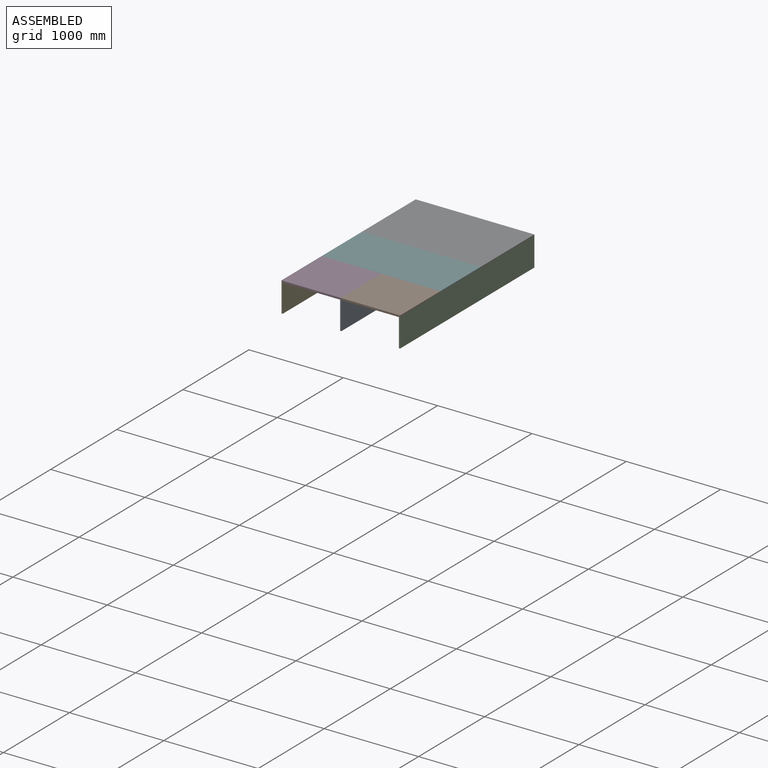
[diagram: assembled view]
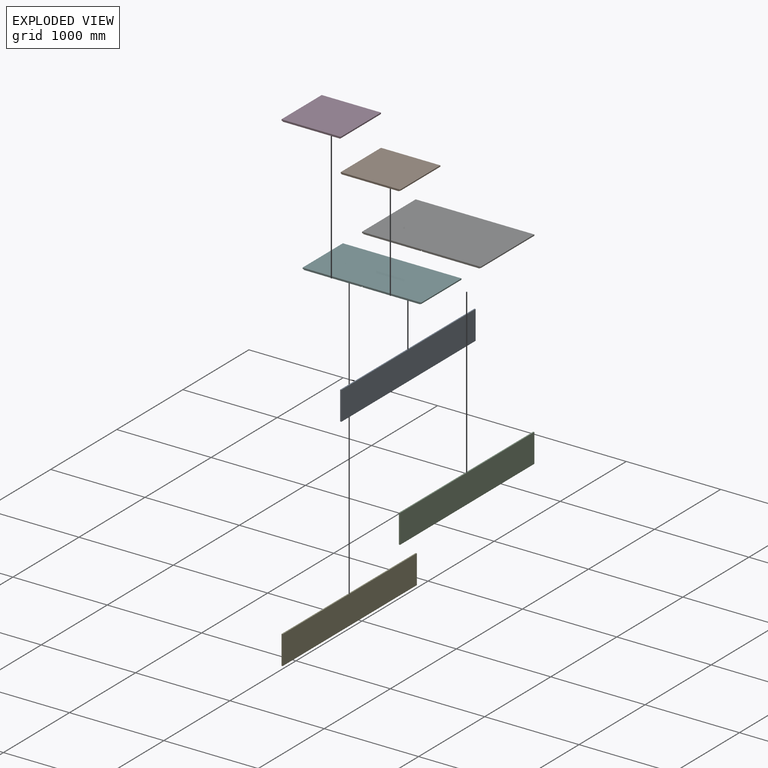
[diagram: exploded view]
GUIDED TOUR — MATED ASSEMBLY (Onshape document 25222a847f9256c59a29264d, AutoMate assembly 25222a847f9256c59a29264d_818da6c3a20291dfd6bd73ee_654201177585050ae4c5c209_default)

This assembly has 7 components, labeled P0..P6 below (a component is one placed occurrence of a part; the same part can appear more than once), held together by 6 mates. A mate is a constraint between two components; its type names the relative motion it leaves free:
  FASTENED — locks the two components together rigidly (no relative motion).
Axis/direction vectors are unit vectors and 'through' points are millimeter coordinates, both in the assembly's world frame.

MATES
  1. FASTENED "Fastened 3": P3 <-> P5, direction (0.000, 1.000, 0.000) through (0.00, -609.60, 19.05) mm
  2. FASTENED "Fastened 1": P6 <-> P5, direction (0.000, -1.000, 0.000) through (0.00, 0.00, 19.05) mm
  3. FASTENED "Fastened 5": P2 <-> P1, direction (0.000, 0.000, 1.000) through (1244.60, -1219.20, 6.35) mm
  4. FASTENED "Fastened 4": P4 <-> P3, direction (0.000, 0.000, 1.000) through (12.70, -1219.20, 6.35) mm
  5. FASTENED "Fastened 2": P1 <-> P5, direction (0.000, 1.000, 0.000) through (1257.30, -609.60, 19.05) mm
  6. FASTENED "Fastened 6": P0 <-> P6, direction (0.000, 0.000, 1.000) through (622.30, 812.80, 6.35) mm

ASSEMBLY ORDER
  1. P6 — the base component [order verified]
  2. P5 [order verified]
  3. P1 [order verified]
  4. P3 [order verified]
  5. P0 [order verified]
  6. P2 [order verified]
  7. P4 [order verified]
Order-tag legend:
  [order verified] — this step's position reverses a verified removal order: the component was checked to insert without passing through the ones already placed.

Of the 7 components, 7 carry the full construction recipe — the FeatureScript program that regenerates the part's solid from scratch; the rest are supplied as boundary geometry only.
Each toured component is shown spotlighted twice — in the assembled view, then in the exploded view, where a leader line traces a displaced component back to its assembled socket (saturated green if recipe-attached, orange if geometry-only; every other component desaturated gray) — followed by its recipe or geometry summary and the mates that hold it.
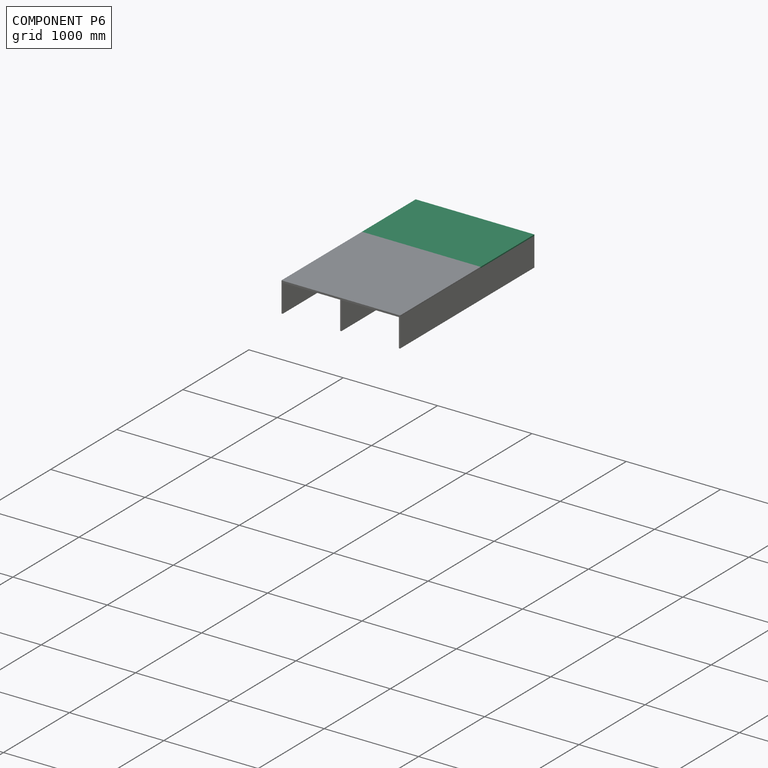
[diagram: component P6 — assembled]
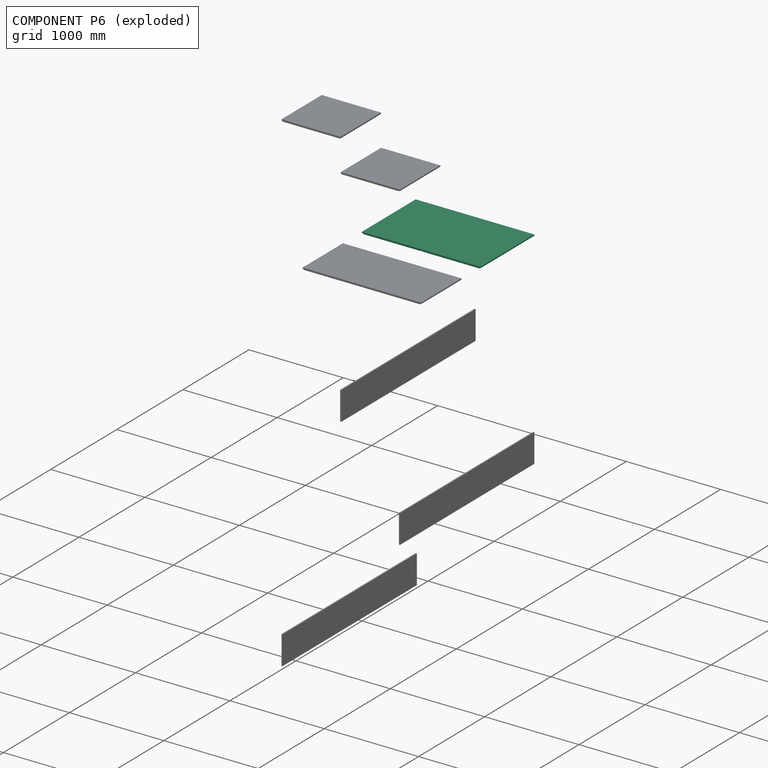
[diagram: component P6 — exploded]
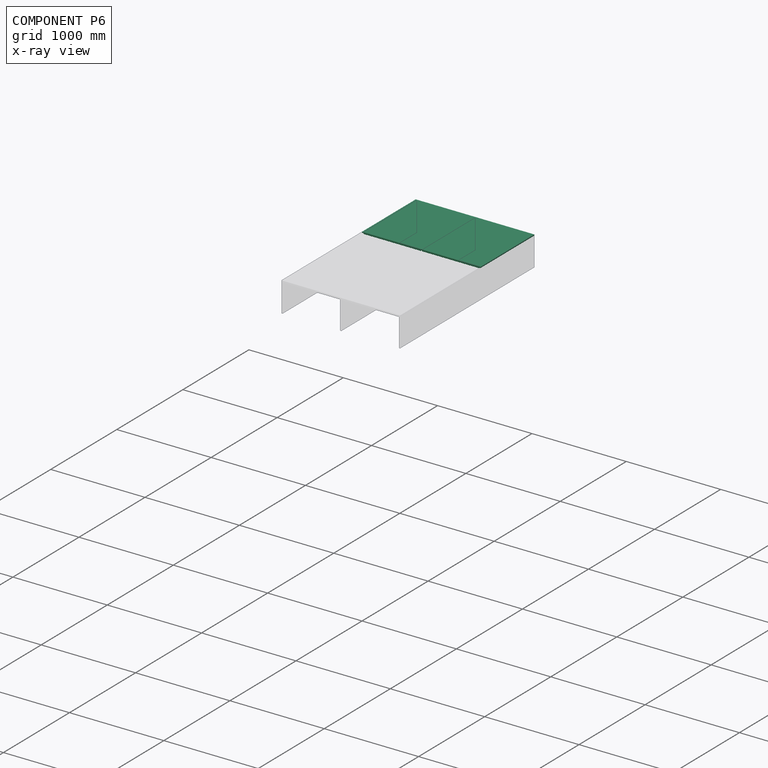
[diagram: component P6 — x-ray view]
COMPONENT P6 — recipe-attached (CADFS 00871114, mesh-verified: the recipe's output STEP matches this component's geometry to below the mesh-comparison resolution (tessellation chordal tolerance ~2.25 mm)).
Held by: FASTENED mate "Fastened 1" to P5; FASTENED mate "Fastened 6" to P0.
Construction recipe (FeatureScript — the CAD program that rebuilds this solid; sketch coordinates are in the units given by the * unit suffixes, e.g. mm):

FeatureScript 1511;
import(path : "onshape/std/geometry.fs", version : "1511.0");
import(path : "onshape/std/common.fs", version : "1511.0");
const mm = millimeter;
const VERTEX = EntityType.VERTEX;
const EDGE = EntityType.EDGE;
const FACE = EntityType.FACE;
const BODY = EntityType.BODY;
function v(x, y){return vector(x, y);}
function OD(order){return orderDisambiguation(order);}
function OSD(set){return originalSetDisambiguation(set);}
function TD(topology){return topologyDisambiguation(topology);}
function TDD(query){return trueDependencyDisambiguation(query);}
function sQuery(a, b, c) {return sketchEntityQuery(a, b, c);}

annotation { "Feature Type Name" : "Feature", "Feature Type Description" : "" }
export const myFeature = defineFeature(function(context is Context, id is Id, definition is map)
    precondition{}
    {
        {
            var Q0;
            Q0=qCreatedBy(makeId("Front.planeOp"),FACE);
            var sketch = newSketch(context, id + "F0", { "sketchPlane" : qUnion([Q0])});
            skLineSegment(sketch, "E0.bottom", {"start": v(12.7, 0) * mm, "end": v(622.3, 0) * mm});
            skLineSegment(sketch, "E0.top", {"start": v(0, 19.05) * mm, "end": v(1257.3, 19.05) * mm});
            skLineSegment(sketch, "E0.left", {"start": v(0, 6.35) * mm, "end": v(0, 19.05) * mm});
            skLineSegment(sketch, "E0.right", {"start": v(1257.3, 6.35) * mm, "end": v(1257.3, 19.05) * mm});
            skLineSegment(sketch, "E1.top", {"start": v(0, 6.35) * mm, "end": v(12.7, 6.35) * mm});
            skLineSegment(sketch, "E1.right", {"start": v(12.7, 0) * mm, "end": v(12.7, 6.35) * mm});
            skLineSegment(sketch, "E2.top", {"start": v(622.3, 6.35) * mm, "end": v(635, 6.35) * mm});
            skLineSegment(sketch, "E2.left", {"start": v(622.3, 0) * mm, "end": v(622.3, 6.35) * mm});
            skLineSegment(sketch, "E2.right", {"start": v(635, 0) * mm, "end": v(635, 6.35) * mm});
            skLineSegment(sketch, "E3.trimOffspring", {"start": v(635, 0) * mm, "end": v(1244.6, 0) * mm});
            skLineSegment(sketch, "E4.top", {"start": v(1257.3, 6.35) * mm, "end": v(1244.6, 6.35) * mm});
            skLineSegment(sketch, "E4.right", {"start": v(1244.6, 0) * mm, "end": v(1244.6, 6.35) * mm});
            skSolve(sketch);
        }
        {
            var Q0;
            Q0 = qSketchRegion(id + "F0", true);
            extrude(context, id + "F1", {"entities" : qUnion([Q0]), "depth" : 812.8 * mm, "offsetDistance" : 25.4 * mm});
        }
    });
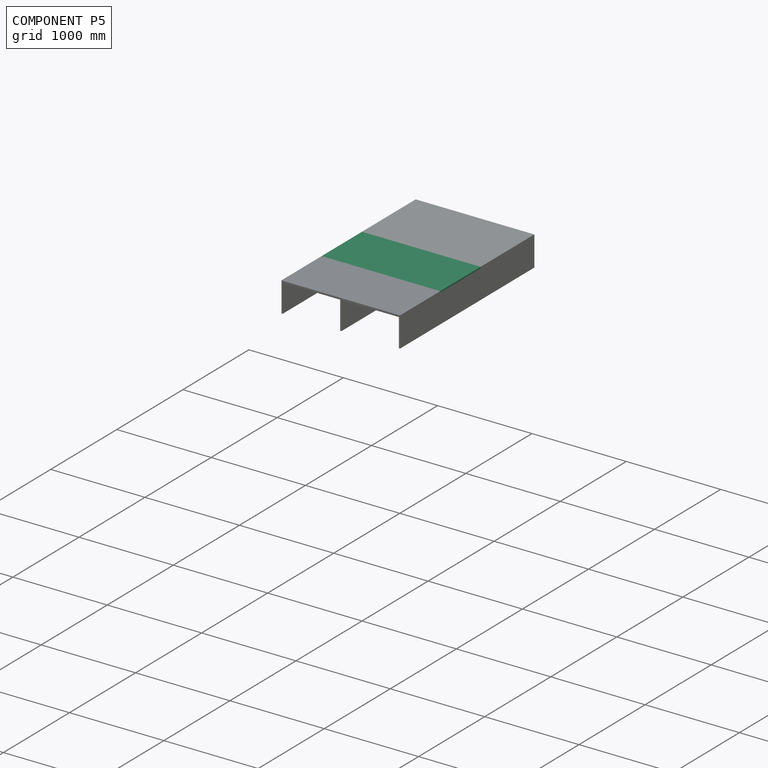
[diagram: component P5 — assembled]
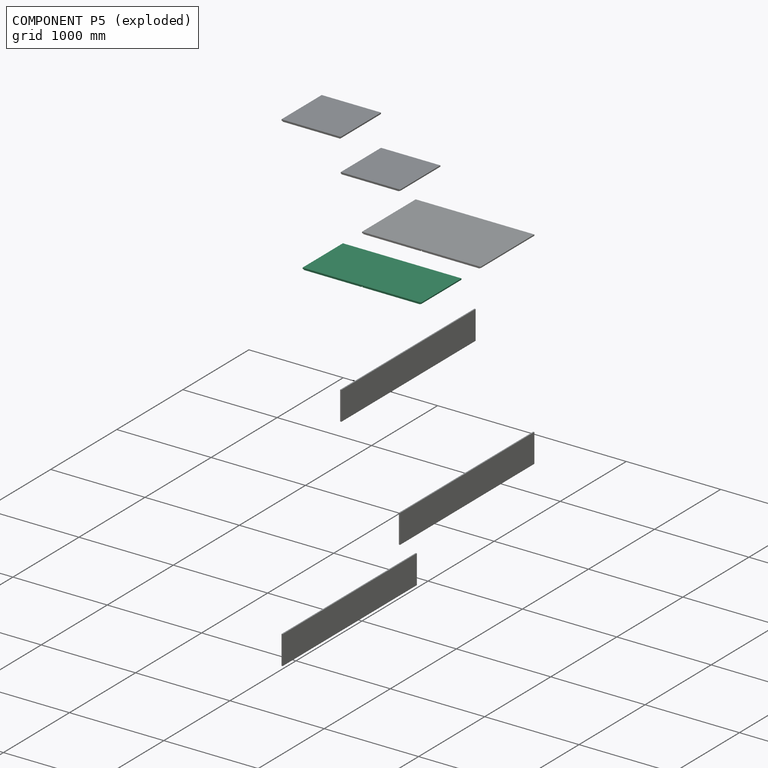
[diagram: component P5 — exploded]
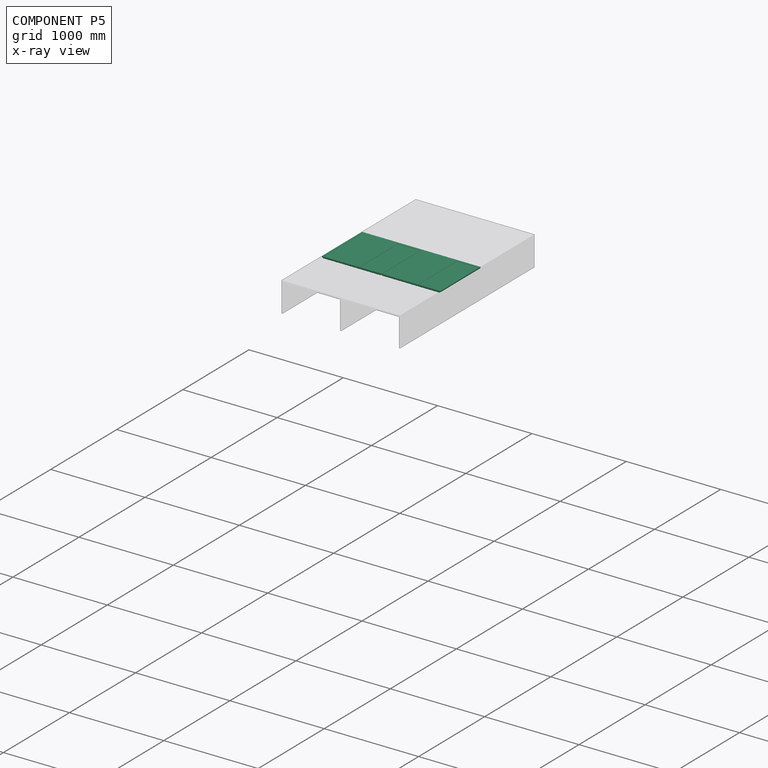
[diagram: component P5 — x-ray view]
COMPONENT P5 — recipe-attached (CADFS 00871112, mesh-verified: the recipe's output STEP matches this component's geometry to below the mesh-comparison resolution (tessellation chordal tolerance ~2.1 mm)).
Held by: FASTENED mate "Fastened 3" to P3; FASTENED mate "Fastened 1" to P6; FASTENED mate "Fastened 2" to P1.
Construction recipe (FeatureScript — the CAD program that rebuilds this solid; sketch coordinates are in the units given by the * unit suffixes, e.g. mm):

FeatureScript 1511;
import(path : "onshape/std/geometry.fs", version : "1511.0");
import(path : "onshape/std/common.fs", version : "1511.0");
const mm = millimeter;
const VERTEX = EntityType.VERTEX;
const EDGE = EntityType.EDGE;
const FACE = EntityType.FACE;
const BODY = EntityType.BODY;
function v(x, y){return vector(x, y);}
function OD(order){return orderDisambiguation(order);}
function OSD(set){return originalSetDisambiguation(set);}
function TD(topology){return topologyDisambiguation(topology);}
function TDD(query){return trueDependencyDisambiguation(query);}
function sQuery(a, b, c) {return sketchEntityQuery(a, b, c);}

annotation { "Feature Type Name" : "Feature", "Feature Type Description" : "" }
export const myFeature = defineFeature(function(context is Context, id is Id, definition is map)
    precondition{}
    {
        {
            var Q0;
            Q0=qCreatedBy(makeId("Front.planeOp"),FACE);
            var sketch = newSketch(context, id + "F0", { "sketchPlane" : qUnion([Q0])});
            skLineSegment(sketch, "E0.bottom", {"start": v(12.7, 0) * mm, "end": v(622.3, 0) * mm});
            skLineSegment(sketch, "E0.top", {"start": v(0, 19.05) * mm, "end": v(1257.3, 19.05) * mm});
            skLineSegment(sketch, "E0.left", {"start": v(0, 6.35) * mm, "end": v(0, 19.05) * mm});
            skLineSegment(sketch, "E0.right", {"start": v(1257.3, 6.35) * mm, "end": v(1257.3, 19.05) * mm});
            skLineSegment(sketch, "E1.top", {"start": v(0, 6.35) * mm, "end": v(12.7, 6.35) * mm});
            skLineSegment(sketch, "E1.right", {"start": v(12.7, 0) * mm, "end": v(12.7, 6.35) * mm});
            skLineSegment(sketch, "E2.top", {"start": v(622.3, 6.35) * mm, "end": v(635, 6.35) * mm});
            skLineSegment(sketch, "E2.left", {"start": v(622.3, 0) * mm, "end": v(622.3, 6.35) * mm});
            skLineSegment(sketch, "E2.right", {"start": v(635, 0) * mm, "end": v(635, 6.35) * mm});
            skLineSegment(sketch, "E3.trimOffspring", {"start": v(635, 0) * mm, "end": v(1244.6, 0) * mm});
            skLineSegment(sketch, "E4.top", {"start": v(1257.3, 6.35) * mm, "end": v(1244.6, 6.35) * mm});
            skLineSegment(sketch, "E4.right", {"start": v(1244.6, 0) * mm, "end": v(1244.6, 6.35) * mm});
            skSolve(sketch);
        }
        {
            var Q0;
            Q0 = qSketchRegion(id + "F0", true);
            extrude(context, id + "F1", {"entities" : qUnion([Q0]), "depth" : 609.6 * mm, "offsetDistance" : 25.4 * mm});
        }
    });
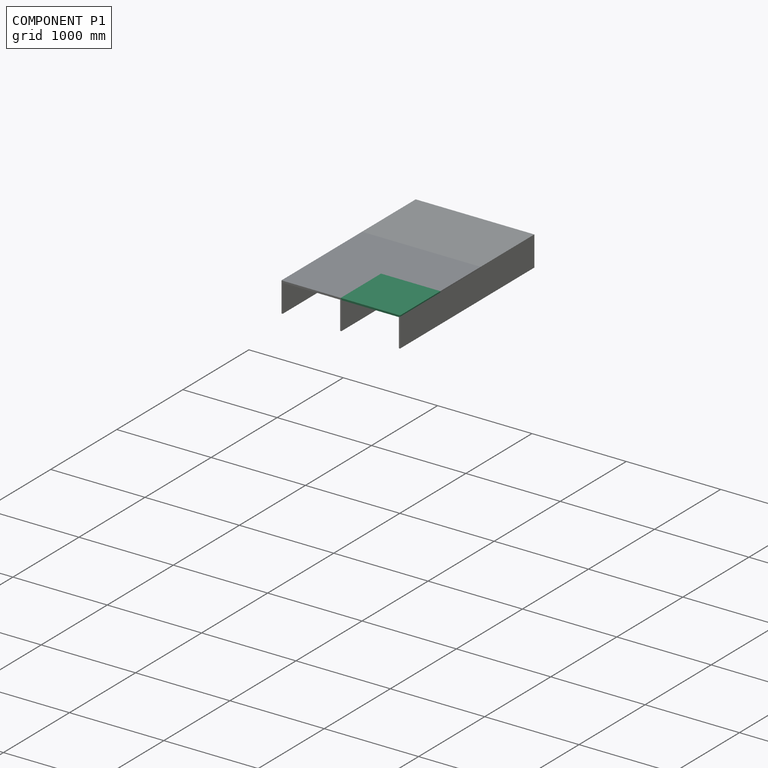
[diagram: component P1 — assembled]
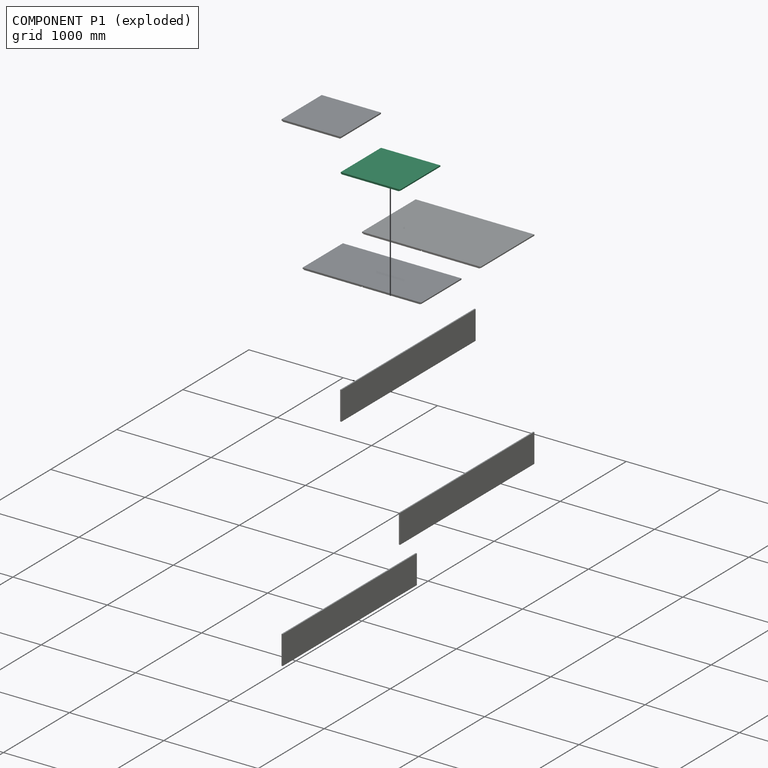
[diagram: component P1 — exploded]
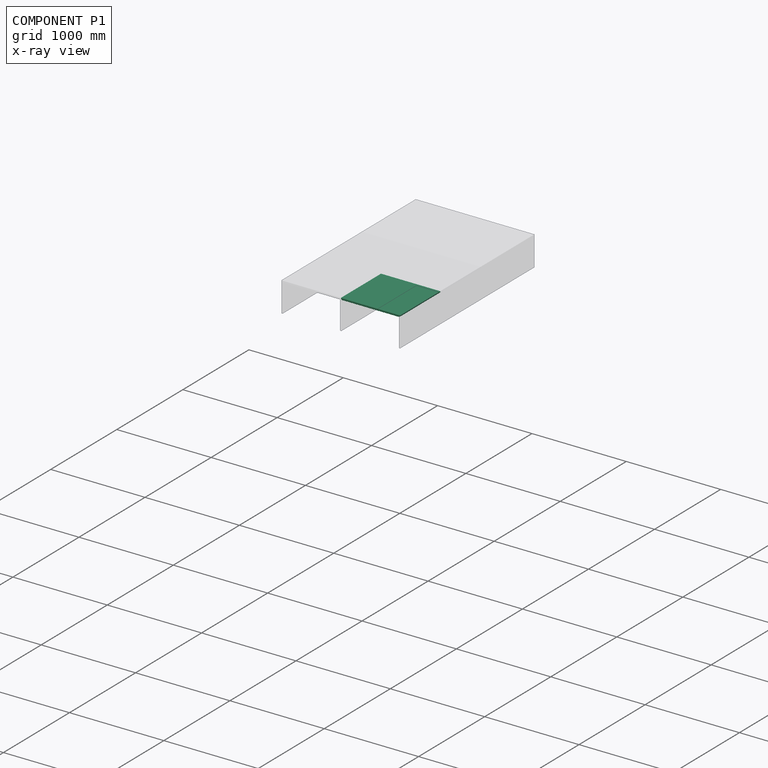
[diagram: component P1 — x-ray view]
COMPONENT P1 — recipe-attached (CADFS 00871113, mesh-verified: the recipe's output STEP matches this component's geometry to below the mesh-comparison resolution (tessellation chordal tolerance ~1.31 mm)).
Held by: FASTENED mate "Fastened 5" to P2; FASTENED mate "Fastened 2" to P5.
Construction recipe (FeatureScript — the CAD program that rebuilds this solid; sketch coordinates are in the units given by the * unit suffixes, e.g. mm):

FeatureScript 1511;
import(path : "onshape/std/geometry.fs", version : "1511.0");
import(path : "onshape/std/common.fs", version : "1511.0");
const mm = millimeter;
const VERTEX = EntityType.VERTEX;
const EDGE = EntityType.EDGE;
const FACE = EntityType.FACE;
const BODY = EntityType.BODY;
function v(x, y){return vector(x, y);}
function OD(order){return orderDisambiguation(order);}
function OSD(set){return originalSetDisambiguation(set);}
function TD(topology){return topologyDisambiguation(topology);}
function TDD(query){return trueDependencyDisambiguation(query);}
function sQuery(a, b, c) {return sketchEntityQuery(a, b, c);}

annotation { "Feature Type Name" : "Feature", "Feature Type Description" : "" }
export const myFeature = defineFeature(function(context is Context, id is Id, definition is map)
    precondition{}
    {
        {
            var Q0;
            Q0=qCreatedBy(makeId("Front.planeOp"),FACE);
            var sketch = newSketch(context, id + "F0", { "sketchPlane" : qUnion([Q0])});
            skLineSegment(sketch, "E0.bottom", {"start": v(12.7, 0) * mm, "end": v(622.3, 0) * mm});
            skLineSegment(sketch, "E0.top", {"start": v(0, 19.05) * mm, "end": v(628.65, 19.05) * mm});
            skLineSegment(sketch, "E0.left", {"start": v(0, 6.35) * mm, "end": v(0, 19.05) * mm});
            skLineSegment(sketch, "E1.top", {"start": v(0, 6.35) * mm, "end": v(12.7, 6.35) * mm});
            skLineSegment(sketch, "E1.right", {"start": v(12.7, 0) * mm, "end": v(12.7, 6.35) * mm});
            skLineSegment(sketch, "E2.top", {"start": v(622.3, 6.35) * mm, "end": v(628.65, 6.35) * mm});
            skLineSegment(sketch, "E2.left", {"start": v(622.3, 0) * mm, "end": v(622.3, 6.35) * mm});
            skLineSegment(sketch, "E3", {"start": v(628.65, 6.35) * mm, "end": v(628.65, 19.05) * mm});
            skSolve(sketch);
        }
        {
            var Q0;
            Q0=qSketchRegion(id+"F0",true);
            extrude(context, id + "F1", {"entities" : qUnion([Q0]), "depth" : 609.6 * mm, "offsetDistance" : 25.4 * mm});
        }
    });
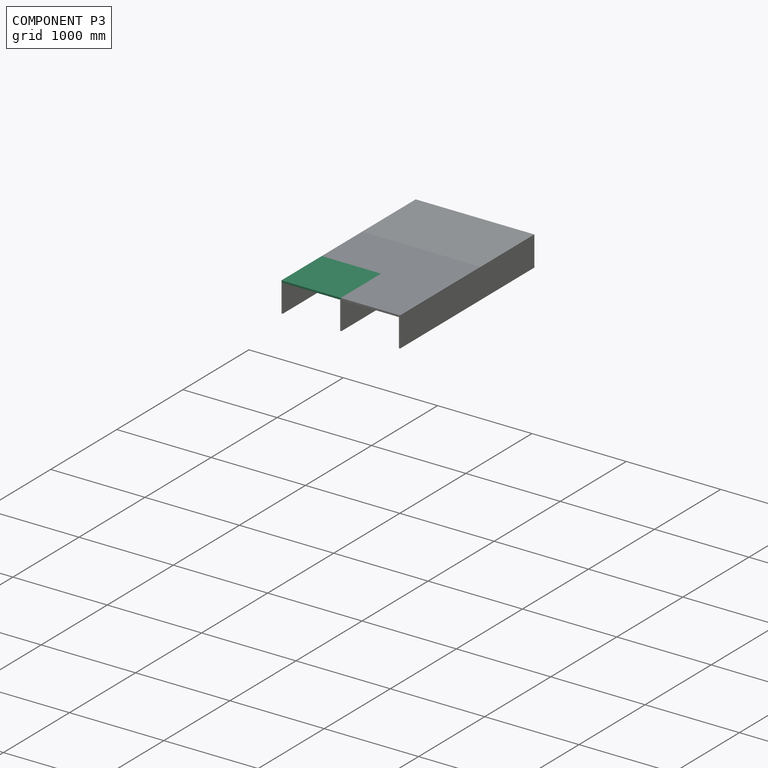
[diagram: component P3 — assembled]
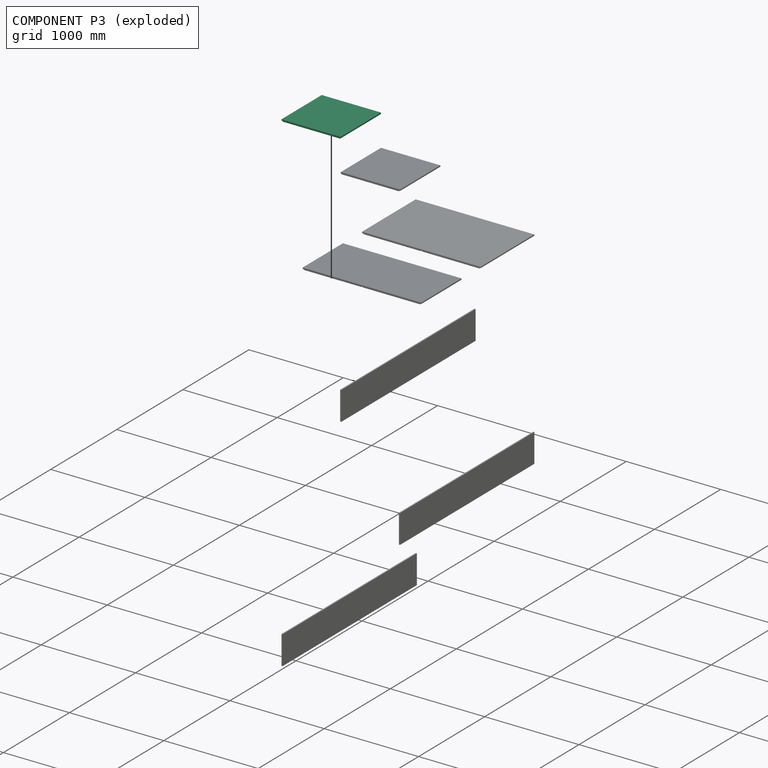
[diagram: component P3 — exploded]
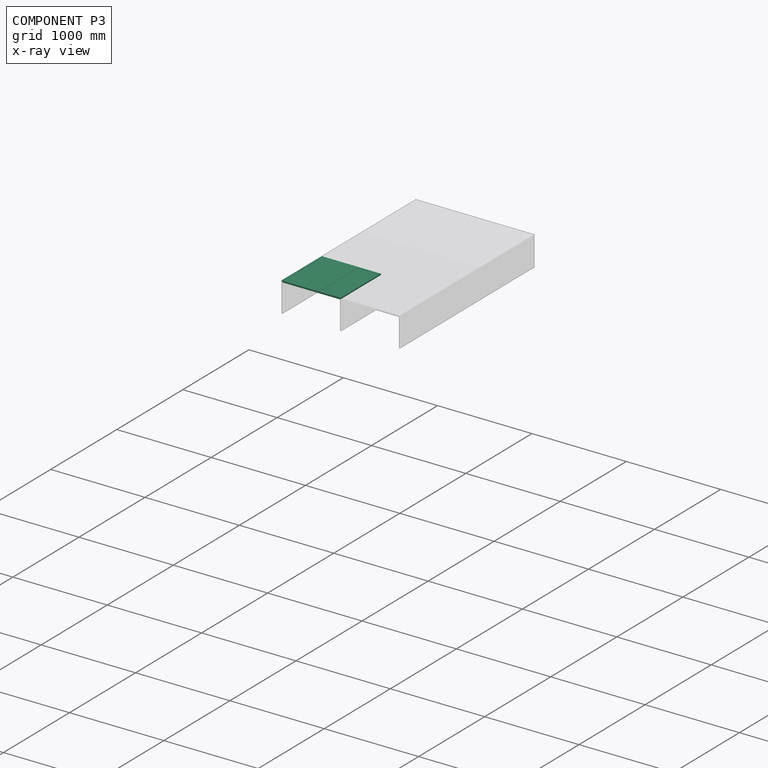
[diagram: component P3 — x-ray view]
COMPONENT P3 — same part as P1 (CADFS 00871113); its construction recipe is shown at P1.
Held by: FASTENED mate "Fastened 3" to P5; FASTENED mate "Fastened 4" to P4.
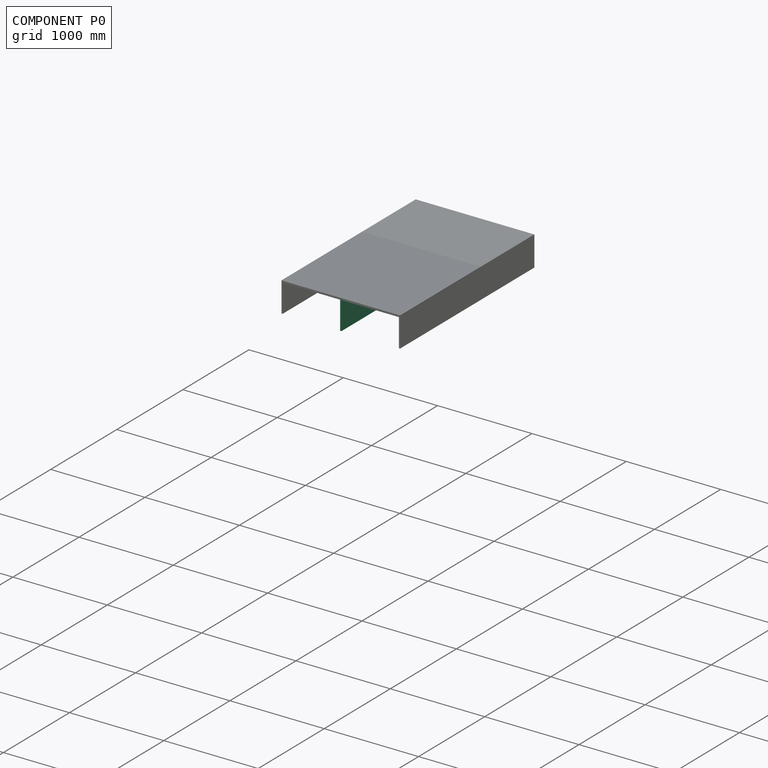
[diagram: component P0 — assembled]
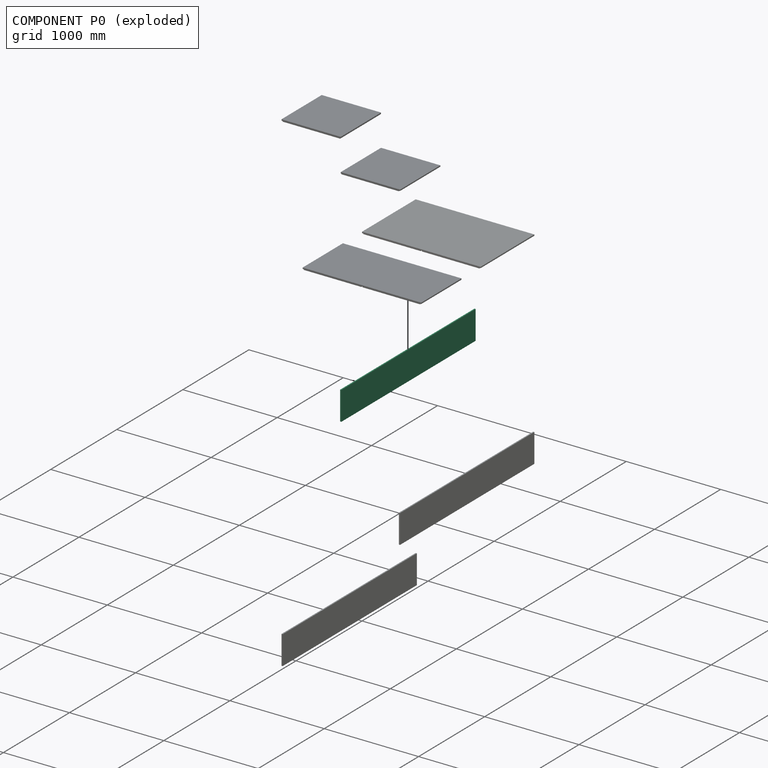
[diagram: component P0 — exploded]
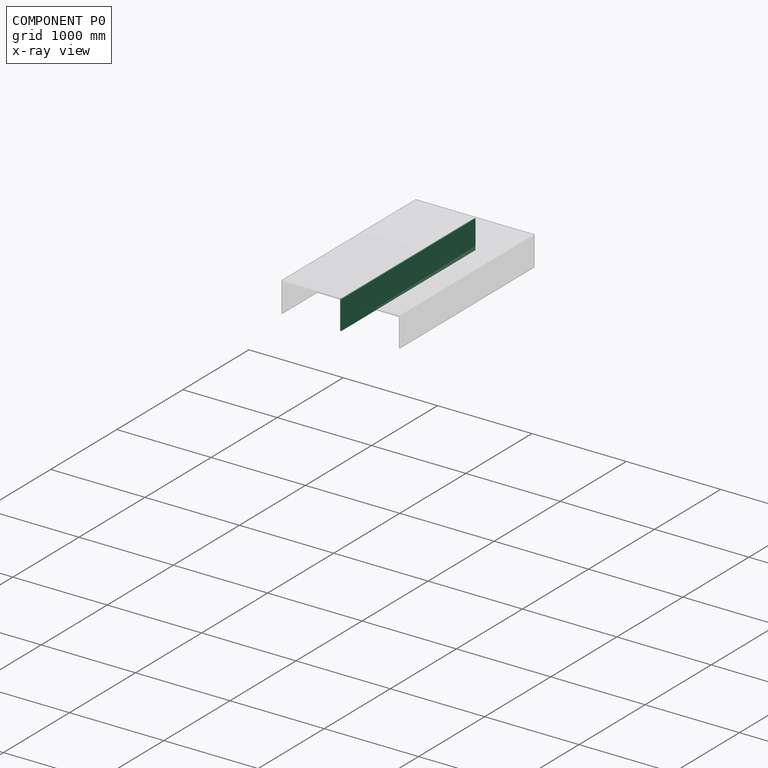
[diagram: component P0 — x-ray view]
COMPONENT P0 — recipe-attached (CADFS 00871111, mesh-verified: the recipe's output STEP matches this component's geometry to below the mesh-comparison resolution (tessellation chordal tolerance ~3.08 mm)).
Held by: FASTENED mate "Fastened 6" to P6.
Construction recipe (FeatureScript — the CAD program that rebuilds this solid; sketch coordinates are in the units given by the * unit suffixes, e.g. mm):

FeatureScript 1511;
import(path : "onshape/std/geometry.fs", version : "1511.0");
import(path : "onshape/std/common.fs", version : "1511.0");
const mm = millimeter;
const VERTEX = EntityType.VERTEX;
const EDGE = EntityType.EDGE;
const FACE = EntityType.FACE;
const BODY = EntityType.BODY;
function v(x, y){return vector(x, y);}
function OD(order){return orderDisambiguation(order);}
function OSD(set){return originalSetDisambiguation(set);}
function TD(topology){return topologyDisambiguation(topology);}
function TDD(query){return trueDependencyDisambiguation(query);}
function sQuery(a, b, c) {return sketchEntityQuery(a, b, c);}

annotation { "Feature Type Name" : "Feature", "Feature Type Description" : "" }
export const myFeature = defineFeature(function(context is Context, id is Id, definition is map)
    precondition{}
    {
        {
            var Q0;
            Q0=qCreatedBy(makeId("Right.planeOp"),FACE);
            var sketch = newSketch(context, id + "F0", { "sketchPlane" : qUnion([Q0])});
            skLineSegment(sketch, "E0.bottom", {"start": v(-1016, 152.4) * mm, "end": v(1016, 152.4) * mm});
            skLineSegment(sketch, "E0.top", {"start": v(-1016, -152.4) * mm, "end": v(1016, -152.4) * mm});
            skLineSegment(sketch, "E0.left", {"start": v(-1016, 152.4) * mm, "end": v(-1016, -152.4) * mm});
            skLineSegment(sketch, "E0.right", {"start": v(1016, 152.4) * mm, "end": v(1016, -152.4) * mm});
            skPoint(sketch, "E0.middle", {"position": v(0, 0) * mm});
            skSolve(sketch);
        }
        {
            var Q0;
            Q0 = qSketchRegion(id + "F0", true);
            extrude(context, id + "F1", {"entities" : qUnion([Q0]), "endBound" : BoundingType.SYMMETRIC, "depth" : 12.7 * mm, "offsetDistance" : 25.4 * mm});
        }
    });
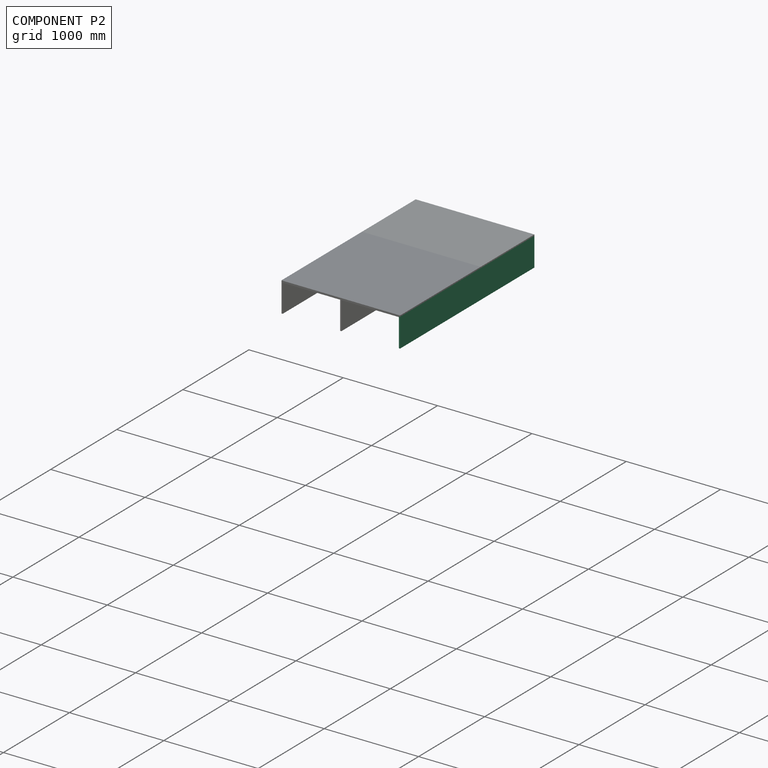
[diagram: component P2 — assembled]
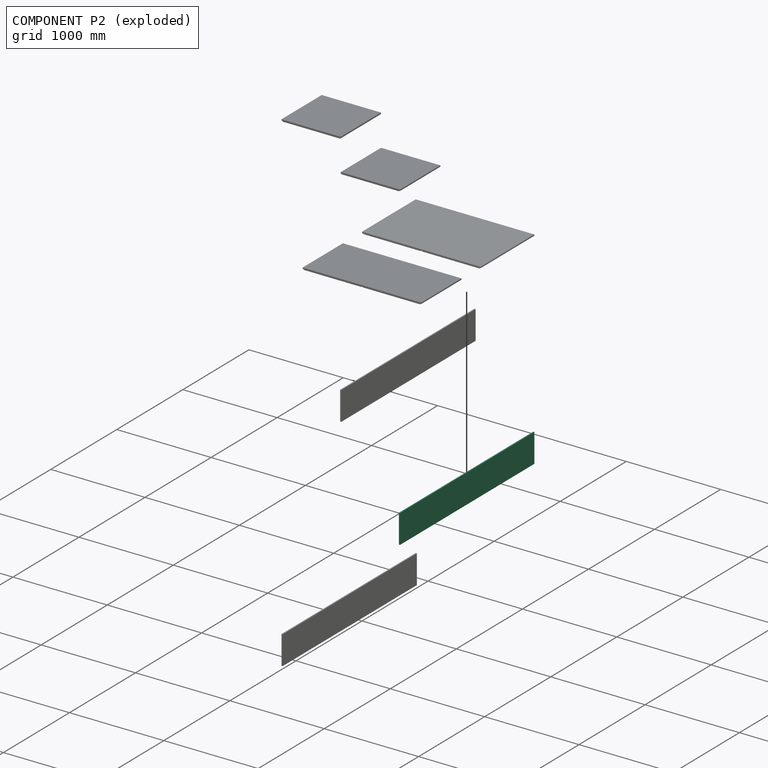
[diagram: component P2 — exploded]
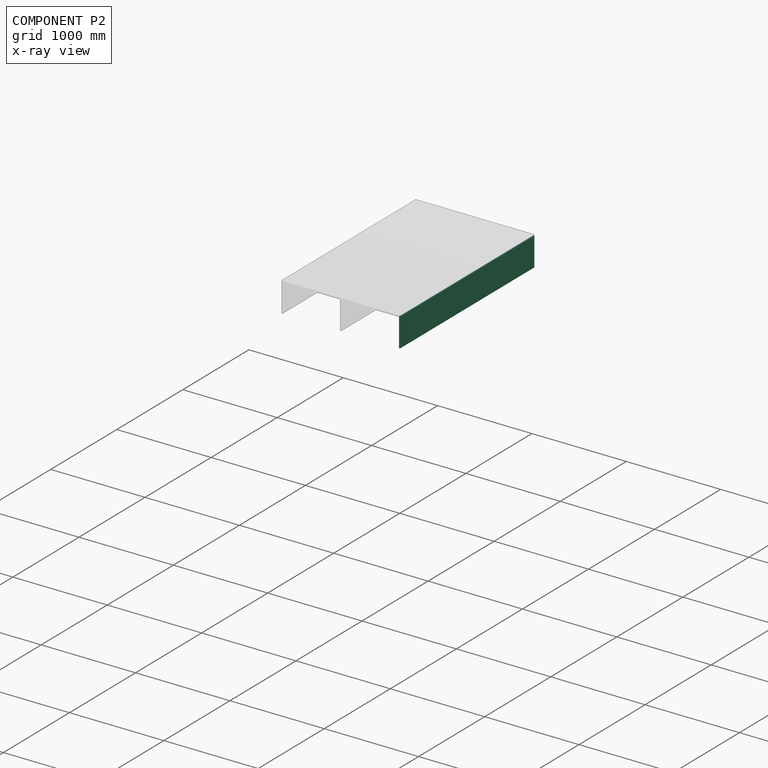
[diagram: component P2 — x-ray view]
COMPONENT P2 — same part as P0 (CADFS 00871111); its construction recipe is shown at P0.
Held by: FASTENED mate "Fastened 5" to P1.
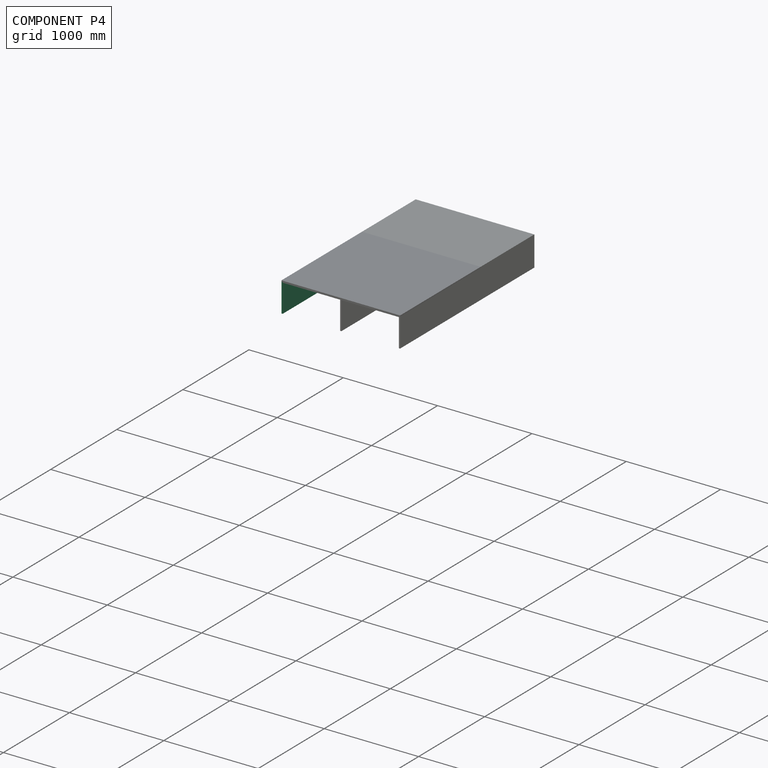
[diagram: component P4 — assembled]
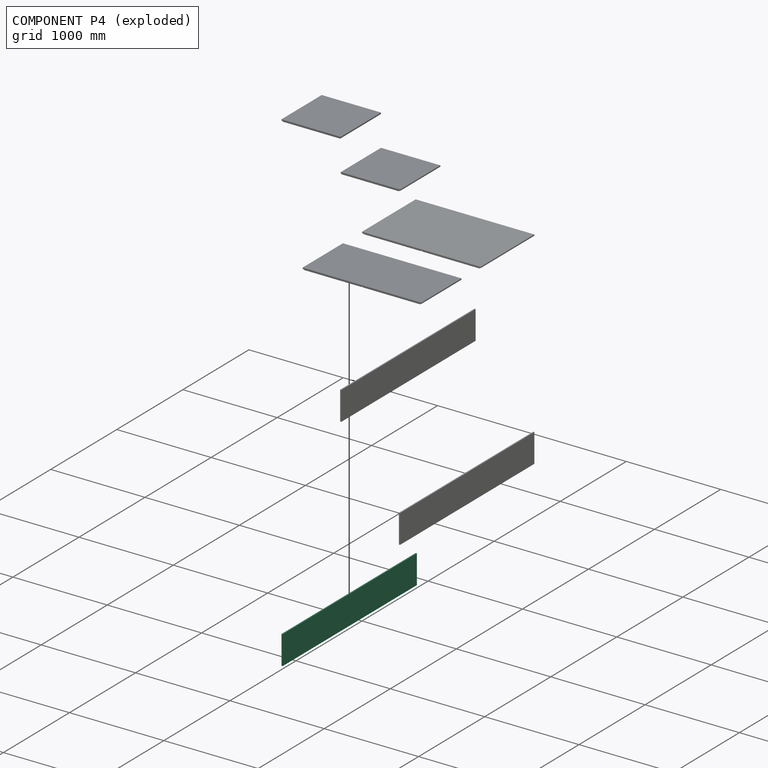
[diagram: component P4 — exploded]
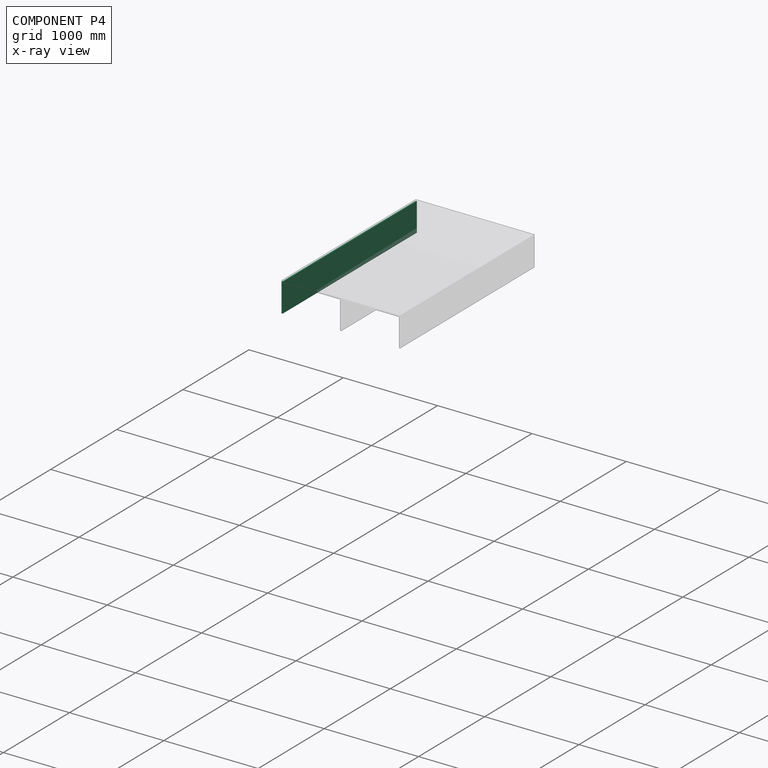
[diagram: component P4 — x-ray view]
COMPONENT P4 — same part as P0 (CADFS 00871111); its construction recipe is shown at P0.
Held by: FASTENED mate "Fastened 4" to P3.
PROVENANCE & LICENSES
Assembly (occurrences, transforms, mates, per-part STEP geometry): AutoMate dataset, Zenodo record 7776208, CC0.
Construction recipes: CADFS (HuggingFace VladPyatov/CADFS, CC-BY-4.0, layered over the ABC dataset), FeatureScript reconstruction programs keyed by ABC model id.
Join: ABC meta listings map ABC model id -> Onshape documentId; within a shared document, parts are matched by geometric signature (bounding-box dims + volume at 0.1% relative tolerance, exact B-rep face/solid counts).
Verification: 7 of this assembly's 7 components carry a recipe attachment, and every attachment is mesh-verified: the CADFS STEP and the AutoMate member STEP were compared as meshes in their shared local frame (symmetric sampled-point-to-mesh distance); worst across the 7 attachments: below the mesh-comparison resolution (tessellation chordal tolerance ~3.08 mm) on a 2055 mm part.
Renders: orthographic iso camera (az 35 / el 25); the floor grid conveys scale (grid pitch printed in each image; no ruler). In the exploded view each component is displaced by its stored offset vector: the offsets alone carry the explosion direction (mate normal/axis signs are not orientation cues and do not encode it), and separation distances are assigned per mate-chain, not proportionally to assembly-order depth.
